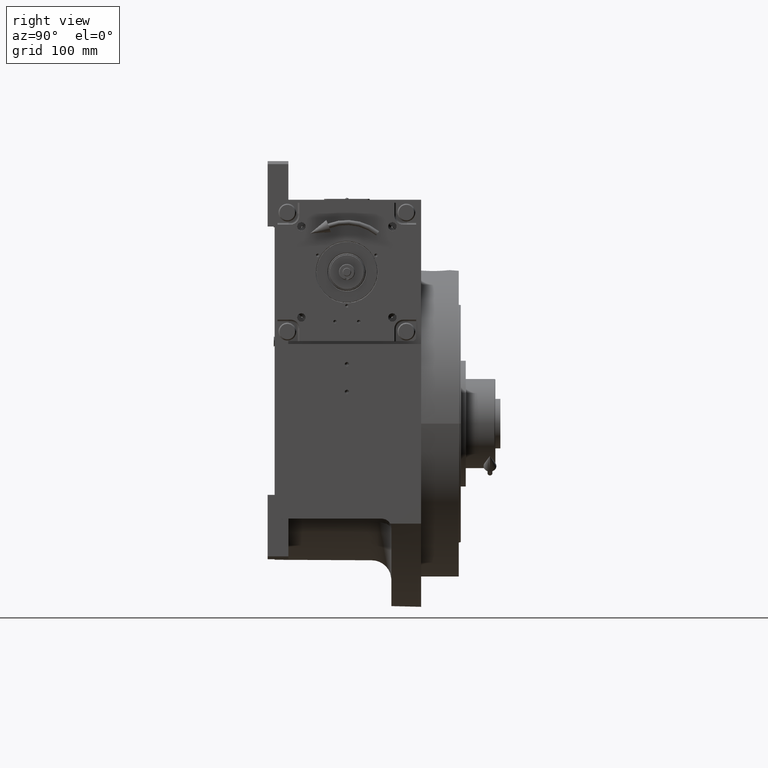
[diagram: clean part render]
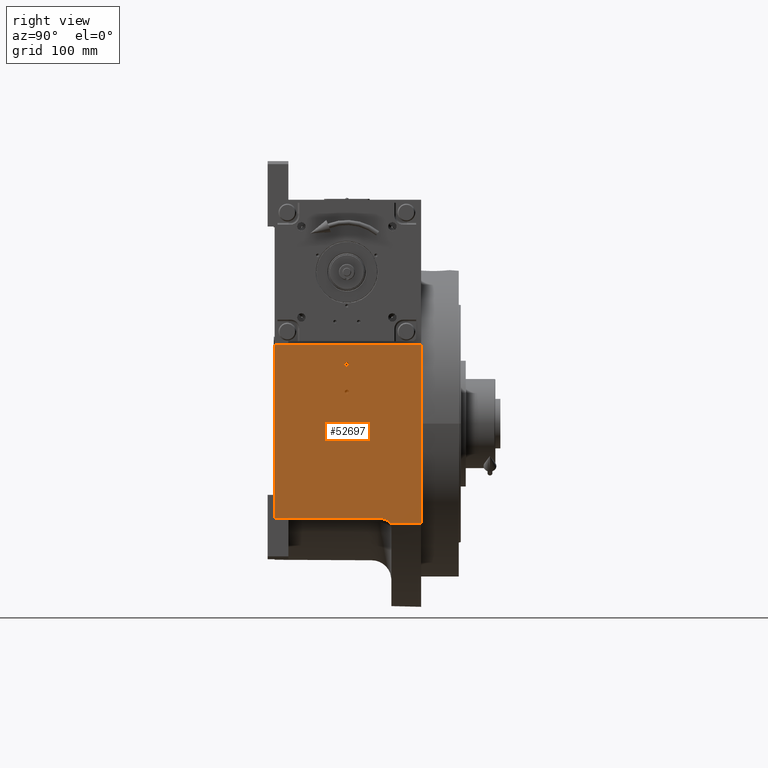
[diagram: same view with one face highlighted and labeled with its STEP entity id]
A machine part, right view. The second image highlights one B-rep face of the part: STEP entity #52697.
In plain terms, the highlighted planar face has unit normal (1, 0, 0).
Its self-contained STEP definition (entity closure, byte-faithful):
#2086 = CARTESIAN_POINT ( 'NONE',  ( 155.0000000000000000, 43.65739391084900234, -100.9950493836205965 ) ) ;
#2682 = CARTESIAN_POINT ( 'NONE',  ( 155.0000000000000000, -73.00000000000000000, 80.00000000000000000 ) ) ;
#2799 = CARTESIAN_POINT ( 'NONE',  ( 155.0000000000000000, -73.00000000000000000, 80.00000000000000000 ) ) ;
#3023 = DIRECTION ( 'NONE',  ( 1.000000000000000000, 0.000000000000000000, 0.000000000000000000 ) ) ;
#3030 = DIRECTION ( 'NONE',  ( 0.000000000000000000, -1.000000000000000000, 0.000000000000000000 ) ) ;
#3813 = ORIENTED_EDGE ( 'NONE', *, *, #17897, .F. ) ;
#3971 = EDGE_LOOP ( 'NONE', ( #51534, #66324, #6497, #40270, #15240, #55379 ) ) ;
#4099 = DIRECTION ( 'NONE',  ( 0.000000000000000000, 1.000000000000000000, 0.000000000000000000 ) ) ;
#4388 = EDGE_CURVE ( 'NONE', #24433, #61838, #23187, .T. ) ;
#4984 = EDGE_CURVE ( 'NONE', #31294, #5020, #18241, .T. ) ;
#5020 = VERTEX_POINT ( 'NONE', #63313 ) ;
#6497 = ORIENTED_EDGE ( 'NONE', *, *, #4388, .T. ) ;
#7106 = FACE_BOUND ( 'NONE', #23648, .T. ) ;
#7463 = PLANE ( 'NONE',  #17120 ) ;
#8244 = CIRCLE ( 'NONE', #32148, 2.100000000000000089 ) ;
#8289 = CIRCLE ( 'NONE', #11866, 2.100000000000000089 ) ;
#9413 = LINE ( 'NONE', #69342, #28855 ) ;
#10975 = EDGE_CURVE ( 'NONE', #14037, #66693, #65670, .T. ) ;
#11866 = AXIS2_PLACEMENT_3D ( 'NONE', #57002, #22828, #52326 ) ;
#12804 = FACE_OUTER_BOUND ( 'NONE', #3971, .T. ) ;
#13029 = CARTESIAN_POINT ( 'NONE',  ( 155.0000000000000000, -2.220446049250315053E-16, 60.00000000000000000 ) ) ;
#14037 = VERTEX_POINT ( 'NONE', #50048 ) ;
#14765 = VECTOR ( 'NONE', #17854, 1000.000000000000000 ) ;
#15193 = EDGE_CURVE ( 'NONE', #24433, #14037, #41206, .T. ) ;
#15240 = ORIENTED_EDGE ( 'NONE', *, *, #50186, .T. ) ;
#16785 = CARTESIAN_POINT ( 'NONE',  ( 155.0000000000000000, 75.00000000000000000, 80.00000000000000000 ) ) ;
#16808 = DIRECTION ( 'NONE',  ( 1.000000000000000000, 0.000000000000000000, 0.000000000000000000 ) ) ;
#17120 = AXIS2_PLACEMENT_3D ( 'NONE', #2799, #29183, #50973 ) ;
#17854 = DIRECTION ( 'NONE',  ( 3.229739708000455480E-16, 0.000000000000000000, -1.000000000000000000 ) ) ;
#17897 = EDGE_CURVE ( 'NONE', #5020, #31294, #8244, .T. ) ;
#18241 = CIRCLE ( 'NONE', #23907, 2.100000000000000089 ) ;
#19554 = CARTESIAN_POINT ( 'NONE',  ( 155.0000000000000000, 35.00000000000000000, -106.0000000000000000 ) ) ;
#19883 = EDGE_CURVE ( 'NONE', #43483, #61205, #8289, .T. ) ;
#19965 = DIRECTION ( 'NONE',  ( 0.000000000000000000, -1.000000000000000000, 3.304235192336775117E-15 ) ) ;
#20436 = CIRCLE ( 'NONE', #64751, 9.999999999999994671 ) ;
#22828 = DIRECTION ( 'NONE',  ( 1.000000000000000000, 0.000000000000000000, 0.000000000000000000 ) ) ;
#23187 = LINE ( 'NONE', #50662, #14765 ) ;
#23648 = EDGE_LOOP ( 'NONE', ( #3813, #52868 ) ) ;
#23907 = AXIS2_PLACEMENT_3D ( 'NONE', #13029, #29728, #3030 ) ;
#23946 = EDGE_CURVE ( 'NONE', #69480, #66693, #41309, .T. ) ;
#24433 = VERTEX_POINT ( 'NONE', #29425 ) ;
#24757 = DIRECTION ( 'NONE',  ( 0.000000000000000000, 1.000000000000000000, 0.000000000000000000 ) ) ;
#25800 = DIRECTION ( 'NONE',  ( 0.000000000000000000, 1.000000000000000000, 0.000000000000000000 ) ) ;
#26730 = CARTESIAN_POINT ( 'NONE',  ( 155.0000000000000000, -73.00000000000000000, -96.00000000000000000 ) ) ;
#27369 = CARTESIAN_POINT ( 'NONE',  ( 155.0000000000000000, -2.100000000000000089, 60.00000000000000000 ) ) ;
#28855 = VECTOR ( 'NONE', #25800, 1000.000000000000000 ) ;
#29183 = DIRECTION ( 'NONE',  ( 1.000000000000000000, 0.000000000000000000, 3.140606279253960088E-16 ) ) ;
#29425 = CARTESIAN_POINT ( 'NONE',  ( 155.0000000000000000, -73.00000000000000000, 80.00000000000000000 ) ) ;
#29433 = CARTESIAN_POINT ( 'NONE',  ( 155.0000000000000000, 75.00000000000000000, -100.9950493836208096 ) ) ;
#29728 = DIRECTION ( 'NONE',  ( 1.000000000000000000, 0.000000000000000000, 0.000000000000000000 ) ) ;
#30098 = CARTESIAN_POINT ( 'NONE',  ( 155.0000000000000000, 0.000000000000000000, 60.00000000000000000 ) ) ;
#31294 = VERTEX_POINT ( 'NONE', #27369 ) ;
#31839 = ORIENTED_EDGE ( 'NONE', *, *, #39314, .F. ) ;
#32148 = AXIS2_PLACEMENT_3D ( 'NONE', #30098, #3023, #24757 ) ;
#35974 = DIRECTION ( 'NONE',  ( 0.000000000000000000, -1.387778780781446464E-15, 1.000000000000000000 ) ) ;
#39314 = EDGE_CURVE ( 'NONE', #61205, #43483, #52718, .T. ) ;
#39734 = VECTOR ( 'NONE', #40955, 1000.000000000000000 ) ;
#40209 = VECTOR ( 'NONE', #60304, 1000.000000000000000 ) ;
#40270 = ORIENTED_EDGE ( 'NONE', *, *, #56019, .T. ) ;
#40955 = DIRECTION ( 'NONE',  ( 0.000000000000000000, 1.000000000000000000, -9.068074731744140484E-16 ) ) ;
#41206 = LINE ( 'NONE', #2682, #41418 ) ;
#41309 = LINE ( 'NONE', #2086, #39734 ) ;
#41418 = VECTOR ( 'NONE', #4099, 1000.000000000000000 ) ;
#43470 = CARTESIAN_POINT ( 'NONE',  ( 155.0000000000000000, 43.65739391084900234, -100.9950493836208096 ) ) ;
#43483 = VERTEX_POINT ( 'NONE', #48197 ) ;
#44005 = ORIENTED_EDGE ( 'NONE', *, *, #19883, .F. ) ;
#48197 = CARTESIAN_POINT ( 'NONE',  ( 155.0000000000000000, 2.100000000000000089, 32.00000000000000000 ) ) ;
#50048 = CARTESIAN_POINT ( 'NONE',  ( 155.0000000000000000, 75.00000000000000000, 80.00000000000000000 ) ) ;
#50186 = EDGE_CURVE ( 'NONE', #61391, #69480, #20436, .T. ) ;
#50662 = CARTESIAN_POINT ( 'NONE',  ( 155.0000000000000000, -73.00000000000000000, 80.00000000000000000 ) ) ;
#50973 = DIRECTION ( 'NONE',  ( 3.140606279253960088E-16, 0.000000000000000000, -1.000000000000000000 ) ) ;
#51534 = ORIENTED_EDGE ( 'NONE', *, *, #10975, .F. ) ;
#52326 = DIRECTION ( 'NONE',  ( 0.000000000000000000, 1.000000000000000000, 0.000000000000000000 ) ) ;
#52697 = ADVANCED_FACE ( 'NONE', ( #55979, #7106, #12804 ), #7463, .T. ) ;
#52718 = CIRCLE ( 'NONE', #57315, 2.100000000000000089 ) ;
#52868 = ORIENTED_EDGE ( 'NONE', *, *, #4984, .F. ) ;
#55379 = ORIENTED_EDGE ( 'NONE', *, *, #23946, .T. ) ;
#55979 = FACE_BOUND ( 'NONE', #58992, .T. ) ;
#56019 = EDGE_CURVE ( 'NONE', #61838, #61391, #9413, .T. ) ;
#56776 = CARTESIAN_POINT ( 'NONE',  ( 155.0000000000000000, 35.00000000000000000, -96.00000000000000000 ) ) ;
#57002 = CARTESIAN_POINT ( 'NONE',  ( 155.0000000000000000, 2.220446049250315053E-16, 32.00000000000000000 ) ) ;
#57315 = AXIS2_PLACEMENT_3D ( 'NONE', #65690, #16808, #19965 ) ;
#58641 = CARTESIAN_POINT ( 'NONE',  ( 155.0000000000000000, -2.100000000000000089, 32.00000000000000000 ) ) ;
#58992 = EDGE_LOOP ( 'NONE', ( #44005, #31839 ) ) ;
#60304 = DIRECTION ( 'NONE',  ( 3.140606279253960088E-16, 0.000000000000000000, -1.000000000000000000 ) ) ;
#61205 = VERTEX_POINT ( 'NONE', #58641 ) ;
#61391 = VERTEX_POINT ( 'NONE', #56776 ) ;
#61838 = VERTEX_POINT ( 'NONE', #26730 ) ;
#63313 = CARTESIAN_POINT ( 'NONE',  ( 155.0000000000000000, 2.100000000000000089, 60.00000000000000000 ) ) ;
#63447 = DIRECTION ( 'NONE',  ( -1.000000000000000000, 0.000000000000000000, 0.000000000000000000 ) ) ;
#64751 = AXIS2_PLACEMENT_3D ( 'NONE', #19554, #63447, #35974 ) ;
#65670 = LINE ( 'NONE', #16785, #40209 ) ;
#65690 = CARTESIAN_POINT ( 'NONE',  ( 155.0000000000000000, -2.220446049250315053E-16, 32.00000000000000000 ) ) ;
#66324 = ORIENTED_EDGE ( 'NONE', *, *, #15193, .F. ) ;
#66693 = VERTEX_POINT ( 'NONE', #29433 ) ;
#69342 = CARTESIAN_POINT ( 'NONE',  ( 155.0000000000000000, -73.00000000000000000, -96.00000000000000000 ) ) ;
#69480 = VERTEX_POINT ( 'NONE', #43470 ) ;